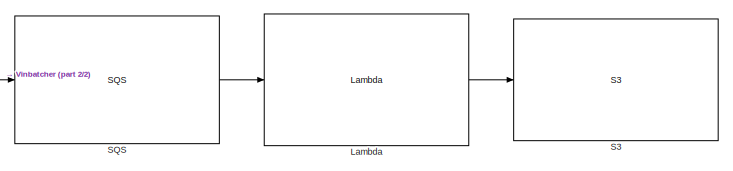
[diagram: root canvas - part 1/2, top right region]
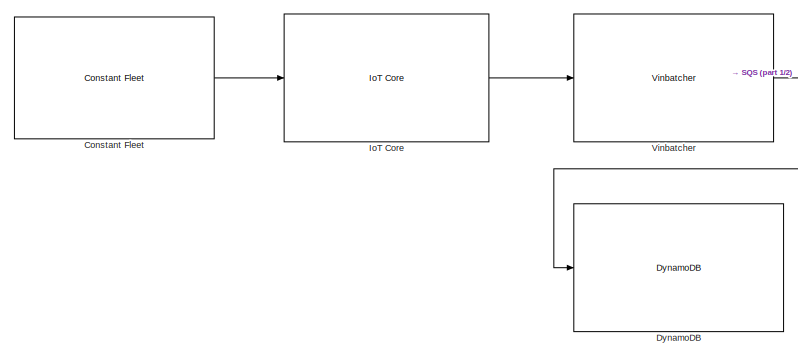
[diagram: root canvas - part 2/2, left side, full height]
MODEL slx_55d2e82929ff
KIND model
CONFIG AbsTol = auto
CONFIG EnableMultiTasking = off
CONFIG FixedStep = auto
CONFIG MaxStep = auto
CONFIG MinStep = auto
CONFIG RelTol = 1e-3
CONFIG SampleTimeConstraint = Unconstrained
CONFIG SolverName = VariableStepAuto
CONFIG StartTime = 0.0
CONFIG StopTime = 1800
BLOCK [Reference] Constant Fleet  REF=VACLib/Vehicle Components/Constant Fleet
  SourceBlock = VACLib/Vehicle Components/Constant Fleet
  SourceProductName = Volvo Architechture Components
BLOCK [Reference] DynamoDB  REF=VACLib/AWS Components/DynamoDB
  SourceBlock = VACLib/AWS Components/DynamoDB
  SourceProductName = Volvo Architechture Components
BLOCK [Reference] IoT Core  REF=VACLib/AWS Components/IoT Core
  SourceBlock = VACLib/AWS Components/IoT Core
  SourceProductName = Volvo Architechture Components
BLOCK [Reference] Lambda  REF=VACLib/AWS Components/Lambda
  SourceBlock = VACLib/AWS Components/Lambda
  SourceProductName = Volvo Architechture Components
BLOCK [Reference] S3  REF=VACLib/AWS Components/S3
  SourceBlock = VACLib/AWS Components/S3
  SourceProductName = Volvo Architechture Components
BLOCK [Reference] SQS  REF=VACLib/AWS Components/SQS
  SourceBlock = VACLib/AWS Components/SQS
  SourceProductName = Volvo Architechture Components
BLOCK [Reference] Vinbatcher  REF=VACLib/AWS Components/Vinbatcher
  SourceBlock = VACLib/AWS Components/Vinbatcher
  SourceProductName = Volvo Architechture Components
LINE Constant Fleet:1 -> IoT Core:1
LINE IoT Core:1 -> Vinbatcher:1
LINE Lambda:1 -> S3:1
LINE SQS:1 -> Lambda:1
NET Vinbatcher:1 -> DynamoDB:1, SQS:1
note: NET lines group one-source signal fan-out (src -> all destinations, sorted); 1:1 wires keep LINE
